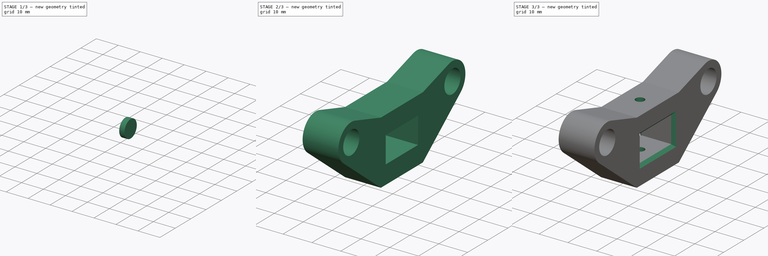
[diagram: build sequence overview — one tinted view per stage of 3, left to right]
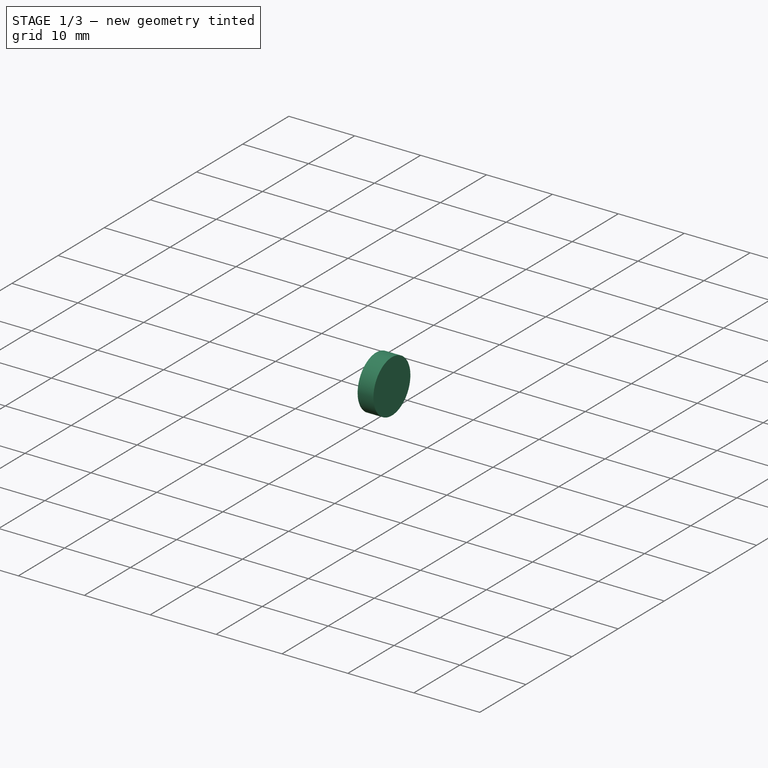
[diagram: stage 1 of 3 — iso view after this stage's code; geometry added in this stage tinted green]
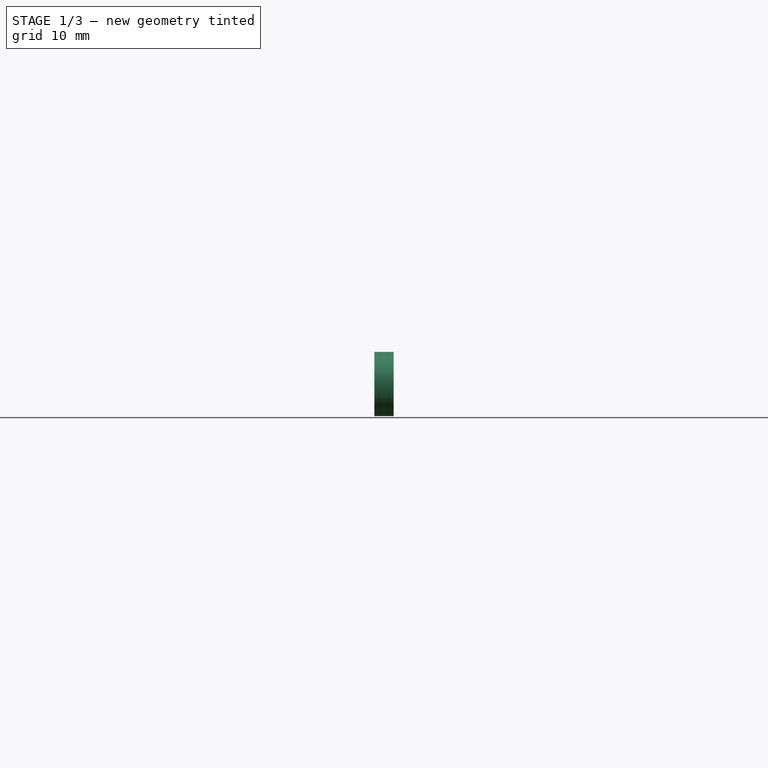
[diagram: stage 1 of 3 — front view after this stage's code; geometry added in this stage tinted green]
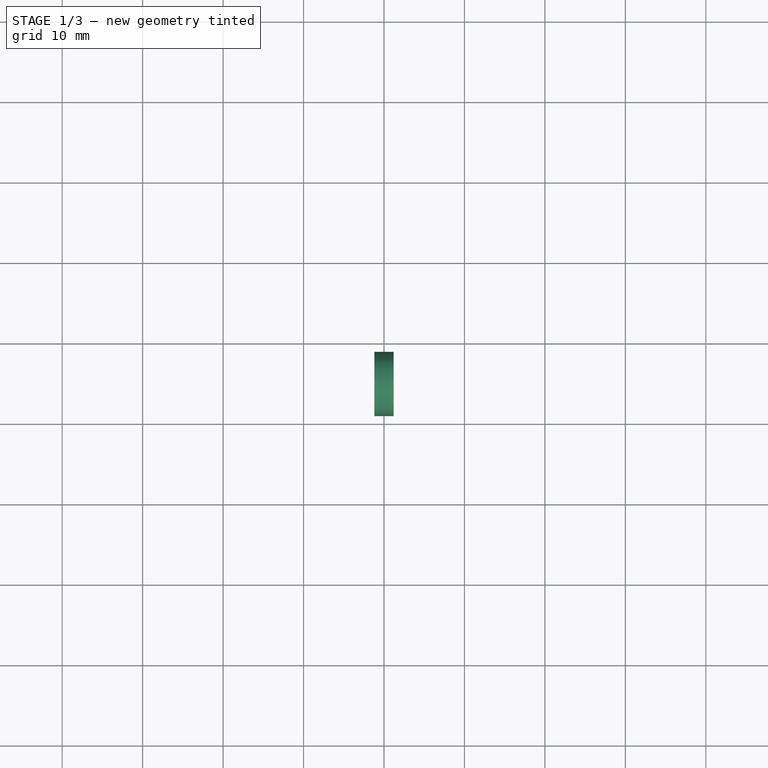
[diagram: stage 1 of 3 — top view after this stage's code; geometry added in this stage tinted green]
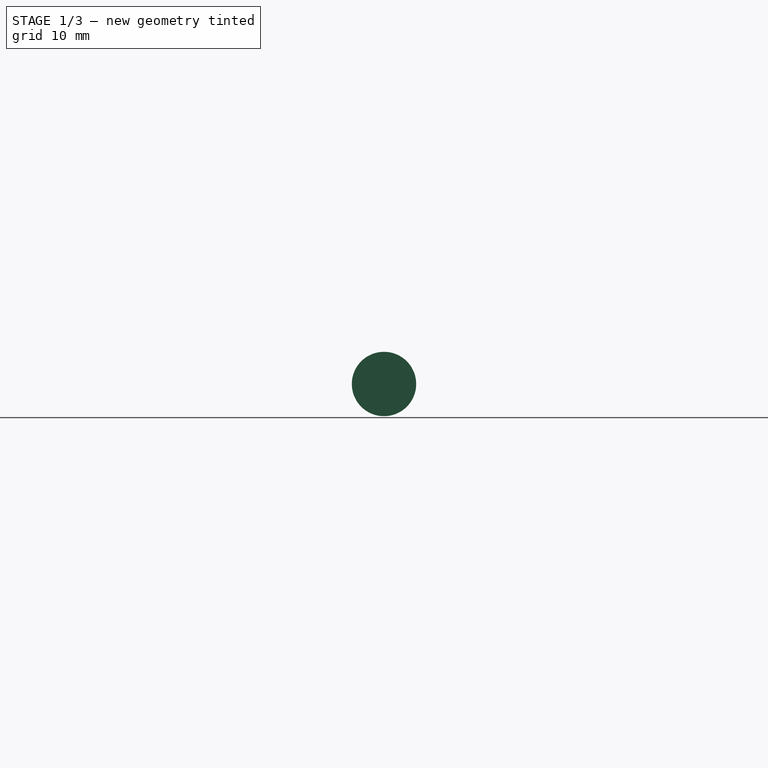
[diagram: stage 1 of 3 — right view after this stage's code; geometry added in this stage tinted green]
FCSTD DOCUMENT  (FreeCAD 0.19R24276 (Git))
Label: plotter-idler-holder
License: All rights reserved
LicenseURL: http://en.wikipedia.org/wiki/All_rights_reserved
objects: Sketcher::SketchObject×4, PartDesign::Pad×3, PartDesign::Body×3, Spreadsheet::Sheet×1, PartDesign::Chamfer×1, PartDesign::Pocket×1, App::Part×1
note: 17 computed .brp shape members not serialized (recipe doc carries the construction recipe); baked Part::Feature solids carry a one-line shape summary decoded from their .brp

FEATURE [PartDesign::Body] Body002  label="RodHolder"
  Group = -> [Sketch019,Pad006,Chamfer,Sketch,Pocket]
  Origin = -> Origin004
  Tip = -> Pocket
FEATURE [Sketcher::SketchObject] Sketch020
  FullyConstrained = true
  MapMode = 5
  Placement = pos=(0,0,0) rot=(0.57735,0.57735,0.57735;2.0944rad)
  Support = -> [YZ_Plane]
  expr: Constraints[1] = (Spreadsheet.belt_hole_height + Spreadsheet.rod_d) / 2
  expr: Constraints[2] = (Spreadsheet.core_length - Spreadsheet.lm8uu_d) / 2 - 2.4
  sketch-geometry (1):
    g0: Circle CenterX=-25.05 CenterY=8.8 CenterZ=0 NormalX=0 NormalY=0 NormalZ=1 AngleXU=0 Radius=4
  constraints (3):
    c: Diameter(g0) = 8
    c: DistanceY(g-1,g0) = 8.8
    c: DistanceX(g0,g-1) = 25.05
FEATURE [PartDesign::Pad] Pad
  Direction = (1,1,1)
  Length = 2.4
  Length2 = 100
  Midplane = true
  Placement = pos=(0,0,0) rot=(0.57735,0.57735,0.57735;2.0944rad)
  Profile = -> Sketch020
  Reversed = true
  Type = 0
FEATURE [PartDesign::Body] Body  label="RodCapLeft"
  Group = -> [Sketch020,Pad]
  Origin = -> Origin
  Placement = pos=(5,0,0) rot=(0,0,1;0rad)
  Tip = -> Pad
FEATURE [Sketcher::SketchObject] Sketch021
  FullyConstrained = true
  MapMode = 5
  Placement = pos=(0,0,0) rot=(0.57735,0.57735,0.57735;2.0944rad)
  Support = -> [YZ_Plane005]
  expr: Constraints[2] = (Spreadsheet.core_length - Spreadsheet.lm8uu_d) / 2 - 2.4
  expr: Constraints[1] = (Spreadsheet.belt_hole_height + Spreadsheet.rod_d) / 2
  sketch-geometry (1):
    g0: Circle CenterX=-25.05 CenterY=8.8 CenterZ=0 NormalX=0 NormalY=0 NormalZ=1 AngleXU=0 Radius=4
  constraints (3):
    c: Diameter(g0) = 8
    c: DistanceY(g-1,g0) = 8.8
    c: DistanceX(g0,g-1) = 25.05
FEATURE [PartDesign::Pad] Pad007
  Direction = (1,1,1)
  Length = 2.4
  Length2 = 100
  Midplane = true
  Placement = pos=(0,0,0) rot=(0.57735,0.57735,0.57735;2.0944rad)
  Profile = -> Sketch021
  Reversed = true
  Type = 0
FEATURE [PartDesign::Body] Body003  label="RodCapRight"
  Group = -> [Sketch021,Pad007]
  Origin = -> Origin005
  Placement = pos=(5,0,0) rot=(0,0,1;3.14159rad)
  Tip = -> Pad007
FEATURE [App::Part] Part001  label="IdlerHolder"
  Group = -> [Body002,Body,Body003]
  Origin = -> Origin002
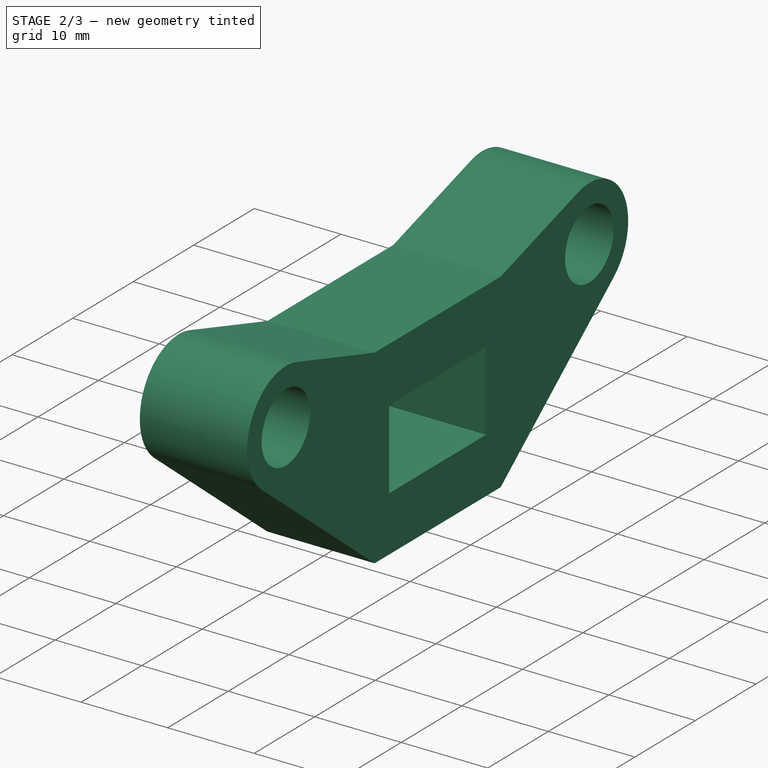
[diagram: stage 2 of 3 — iso view after this stage's code; geometry added in this stage tinted green]
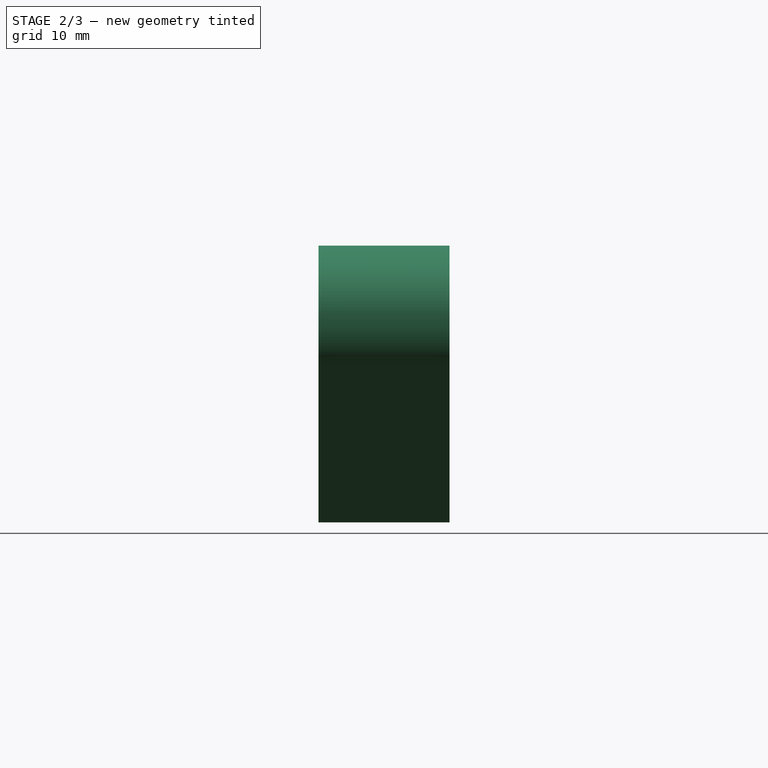
[diagram: stage 2 of 3 — front view after this stage's code; geometry added in this stage tinted green]
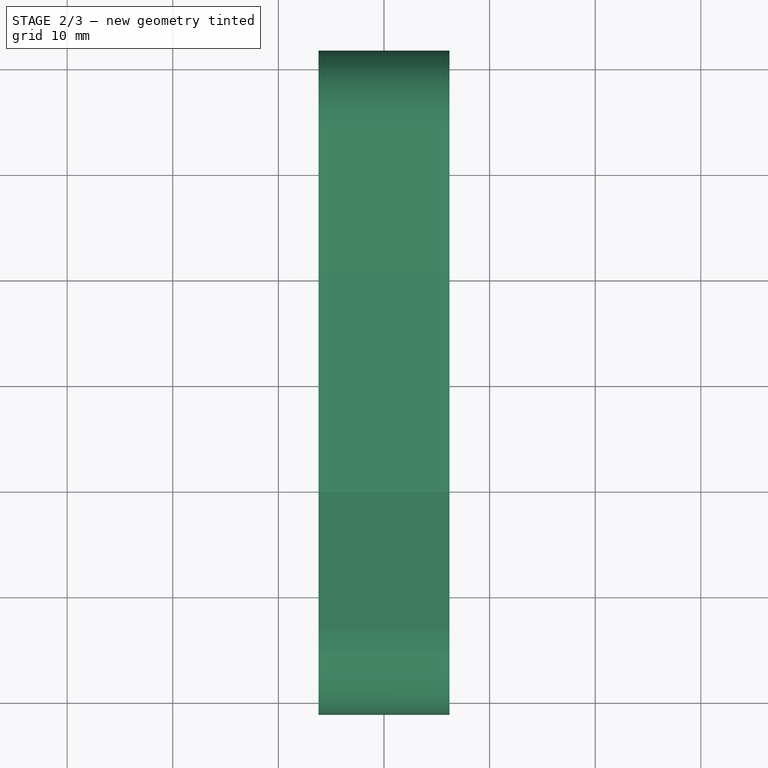
[diagram: stage 2 of 3 — top view after this stage's code; geometry added in this stage tinted green]
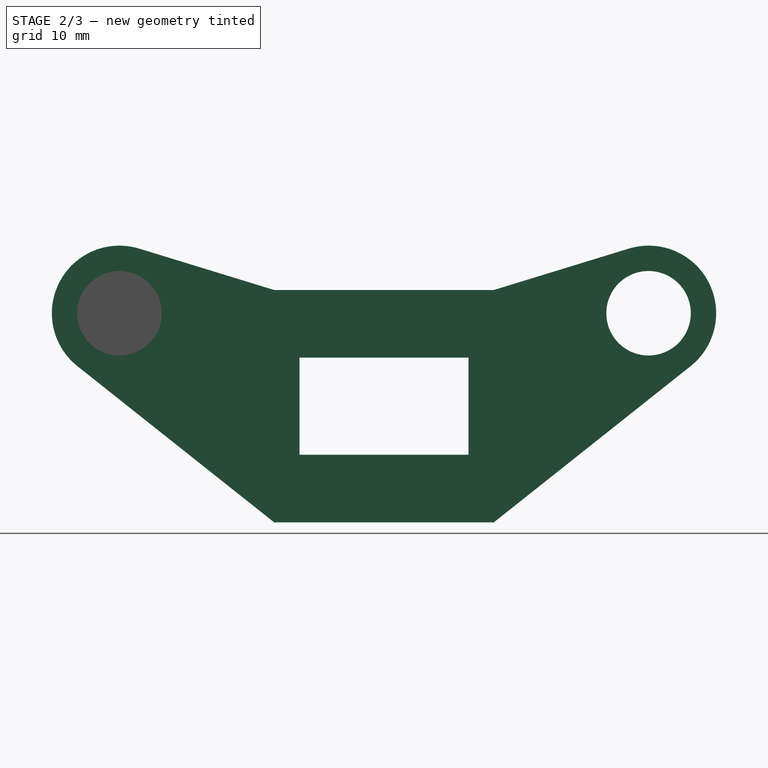
[diagram: stage 2 of 3 — right view after this stage's code; geometry added in this stage tinted green]
FEATURE [Spreadsheet::Sheet] Spreadsheet  label="Specs"
  cells = A5=Core length; B5(core_length)=70; A6=Core heigth; B6(core_height)=22; A7=Core inner length; B7(core_inner_length)=36; A9=Belt hole heigth; B9(belt_hole_height)=9.199999999999999; A10=Belt hole width; B10(belt_hole_width)=16; A12=LM8UU Diameter; B12(lm8uu_d)=15.1; A13=Rod Diameter; B13(rod_d)=8.4; A14=LM8UU Legth; B14(lm8uu_l)=24; A16=nema_l; B16(nema_l)=42; A17=nema_hole_d; B17(nema_hole_d)=3; A18=nema_hole_pos; B18(nema_hole_pos)==31 / 2
FEATURE [Sketcher::SketchObject] Sketch019
  FullyConstrained = true
  MapMode = 5
  Placement = pos=(0,0,0) rot=(0.57735,-0.57735,-0.57735;2.0944rad)
  expr: Constraints[32] = (Spreadsheet.core_height - Spreadsheet.belt_hole_height) / 2
  expr: Constraints[20] = (Spreadsheet.core_length - Spreadsheet.lm8uu_d) / 2 - 2.4
  expr: Constraints[16] = Spreadsheet.belt_hole_width + 2.4 * 2
  expr: Constraints[21] = (Spreadsheet.belt_hole_height + Spreadsheet.rod_d) / 2
  expr: Constraints[13] = Spreadsheet.belt_hole_width
  expr: Constraints[17] = (Spreadsheet.core_height - Spreadsheet.belt_hole_height) / 2
  expr: Constraints[14] = Spreadsheet.belt_hole_height
  sketch-geometry (15):
    g0: ArcOfCircle CenterX=-25.05 CenterY=8.8 CenterZ=0 NormalX=0 NormalY=0 NormalZ=1 AngleXU=0 Radius=6.4 StartAngle=1.27313 EndAngle=4.04145
    g1: ArcOfCircle CenterX=25.05 CenterY=8.8 CenterZ=0 NormalX=0 NormalY=0 NormalZ=1 AngleXU=0 Radius=6.4 StartAngle=5.38332 EndAngle=8.15165
    g2: LineSegment StartX=-29.029 StartY=3.78726 StartZ=0 EndX=-10.4 EndY=-11 EndZ=0
    g3: LineSegment StartX=-10.4 StartY=-11 StartZ=0 EndX=10.4 EndY=-11 EndZ=0
    g4: LineSegment StartX=10.4 StartY=-11 StartZ=0 EndX=29.029 EndY=3.78726 EndZ=0
    g5: LineSegment StartX=-8 StartY=4.6 StartZ=0 EndX=8 EndY=4.6 EndZ=0
    g6: LineSegment StartX=8 StartY=4.6 StartZ=0 EndX=8 EndY=-4.6 EndZ=0
    g7: LineSegment StartX=8 StartY=-4.6 StartZ=0 EndX=-8 EndY=-4.6 EndZ=0
    g8: LineSegment StartX=-8 StartY=-4.6 StartZ=0 EndX=-8 EndY=4.6 EndZ=0
    g9: Circle CenterX=25.05 CenterY=8.8 CenterZ=0 NormalX=0 NormalY=0 NormalZ=1 AngleXU=0 Radius=4
    g10: Circle CenterX=-25.05 CenterY=8.8 CenterZ=0 NormalX=0 NormalY=0 NormalZ=1 AngleXU=0 Radius=4
    g11: LineSegment StartX=-23.1729 StartY=14.9185 StartZ=0 EndX=-10.4 EndY=11 EndZ=0
    g12: LineSegment StartX=-10.4 StartY=11 StartZ=0 EndX=10.4 EndY=11 EndZ=0
    g13: LineSegment StartX=10.4 StartY=11 StartZ=0 EndX=23.1729 EndY=14.9185 EndZ=0
    g14: LineSegment StartX=25.05 StartY=12.8 StartZ=0 EndX=25.05 EndY=15.2 EndZ=0
  constraints (39):
    c: Symmetric(g0,g1,g-2)
    c: Symmetric(g2,g4,g-2)
    c: Horizontal(g0,g1)
    c: Coincident(g2,g3)
    c: Coincident(g3,g4)
    c: Coincident(g5,g6)
    c: Coincident(g6,g7)
    c: Coincident(g7,g8)
    c: Coincident(g8,g5)
    c: Horizontal(g5)
    c: Horizontal(g7)
    c: Vertical(g6)
    c: Vertical(g8)
    c: DistanceX(g5,g5) = 16
    c: DistanceY(g6,g6) = 9.2
    c: Symmetric(g7,g5,g-1)
    c: DistanceX(g3,g3) = 20.8
    c: DistanceY(g3,g6) = 6.4
    c: Coincident(g9,g1)
    c: Diameter(g9) = 8
    c: DistanceX(g-1,g1) = 25.05
    c: DistanceY(g-1,g1) = 8.8
    c: Coincident(g10,g0)
    c: Equal(g10,g9)
    c: Symmetric(g0,g1,g-2)
    c: Coincident(g2,g0)
    c: Tangent(g4,g1) = -1.5708
    c: Coincident(g12,g11)
    c: Horizontal(g12)
    c: Coincident(g13,g12)
    c: Tangent(g13,g1) = 1.5708
    c: Tangent(g11,g0) = 1.5708
    c: DistanceY(g5,g12) = 6.4
    c: Equal(g3,g12)
    c: PointOnObject(g14,g9)
    c: PointOnObject(g14,g1)
    c: Distance(g14) = 2.4
    c: Perpendicular(g9,g14)
    c: Vertical(g14)
FEATURE [PartDesign::Pad] Pad006
  Direction = (1,1,1)
  Length = 12.4
  Length2 = 100
  Midplane = true
  Placement = pos=(0,0,0) rot=(0.57735,-0.57735,-0.57735;2.0944rad)
  Profile = -> Sketch019
  Type = 0
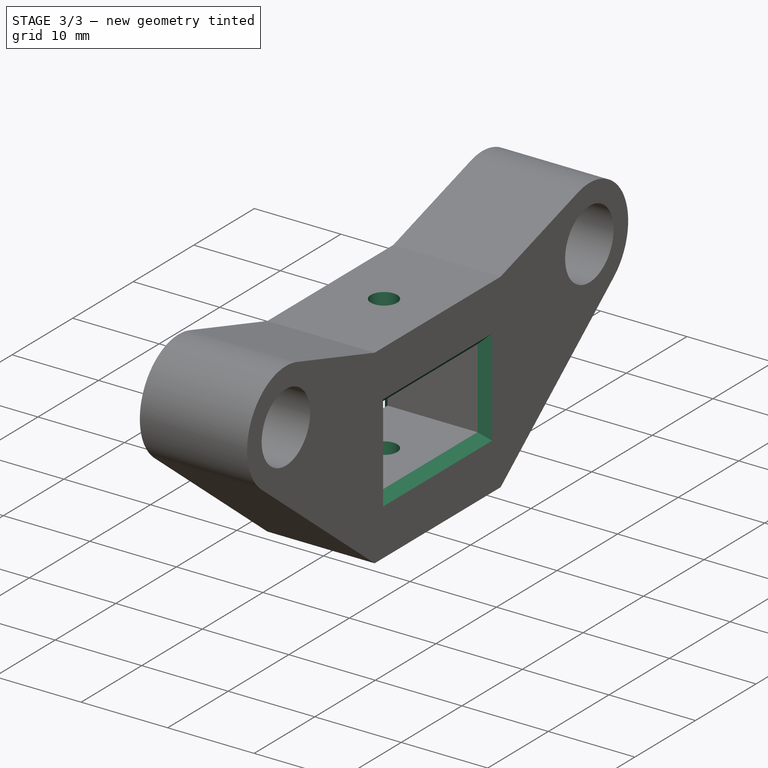
[diagram: stage 3 of 3 — iso view after this stage's code; geometry added in this stage tinted green]
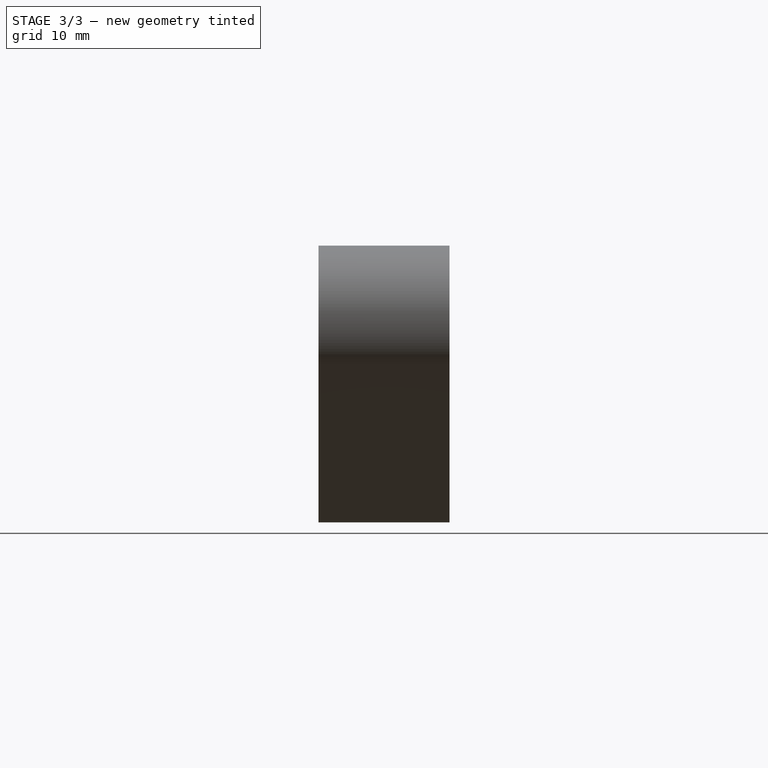
[diagram: stage 3 of 3 — front view after this stage's code; geometry added in this stage tinted green]
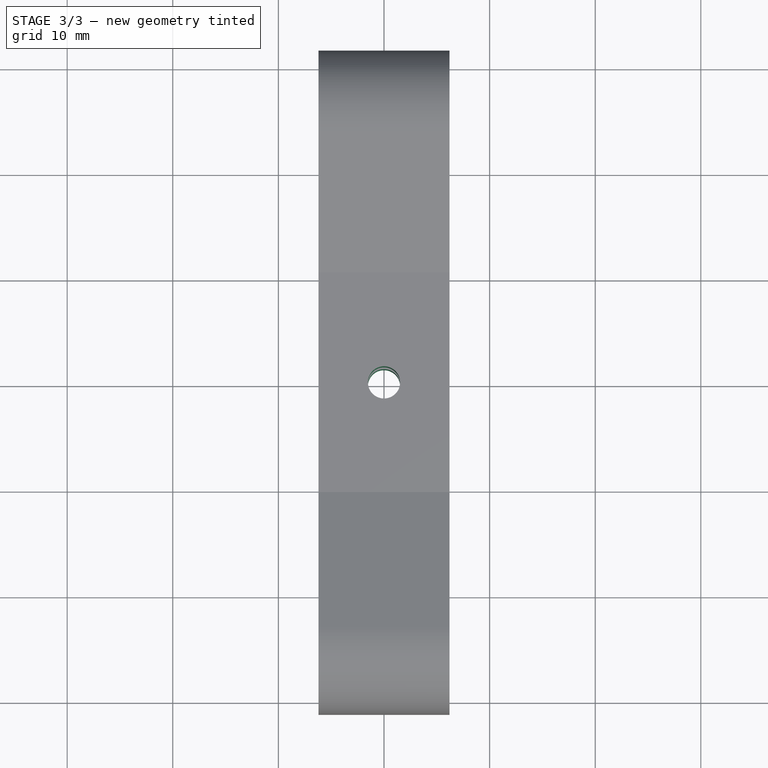
[diagram: stage 3 of 3 — top view after this stage's code; geometry added in this stage tinted green]
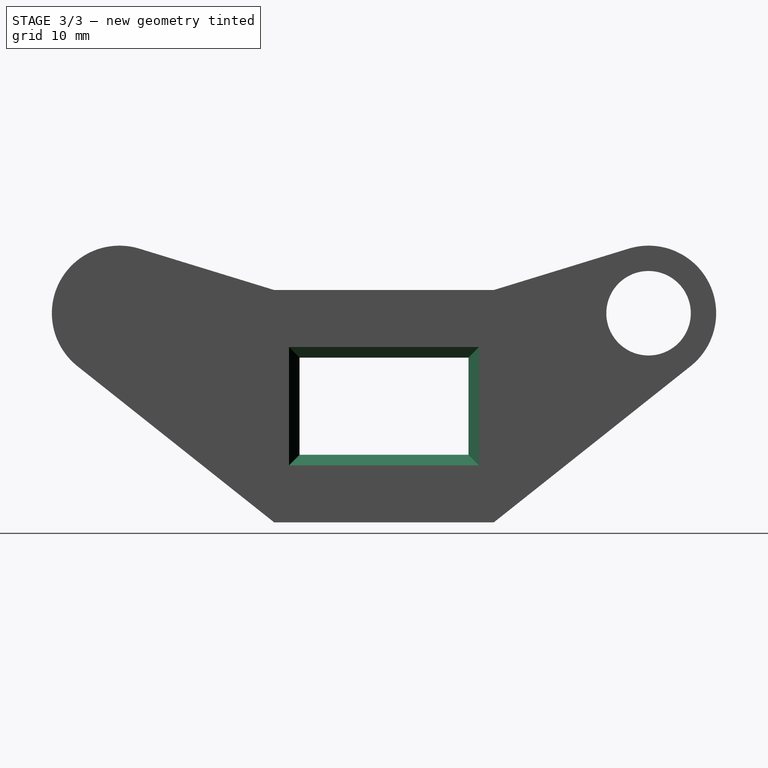
[diagram: stage 3 of 3 — right view after this stage's code; geometry added in this stage tinted green]
FEATURE [PartDesign::Chamfer] Chamfer
  Angle = 45
  Base = -> Pad006 [Edge28,Edge36,Edge31,Edge34,Edge27,Edge30,Edge33,Edge35]
  BaseFeature = -> Pad006
  ChamferType = 0
  FlipDirection = false
  Placement = pos=(0,0,0) rot=(0.57735,-0.57735,-0.57735;2.0944rad)
  Size = 1
  Size2 = 1
  SupportTransform = false
FEATURE [Sketcher::SketchObject] Sketch
  FullyConstrained = true
  MapMode = 5
  Support = -> [XY_Plane004]
  sketch-geometry (1):
    g0: Circle CenterX=0 CenterY=0 CenterZ=0 NormalX=0 NormalY=0 NormalZ=1 AngleXU=0 Radius=1.525
  constraints (2):
    c: Coincident(g0,g-1)
    c: Diameter(g0) = 3.05
FEATURE [PartDesign::Pocket] Pocket
  BaseFeature = -> Chamfer
  Length = 5
  Length2 = 100
  Midplane = true
  Placement = pos=(0,0,0) rot=(0.57735,-0.57735,-0.57735;2.0944rad)
  Profile = -> Sketch
  Type = 1
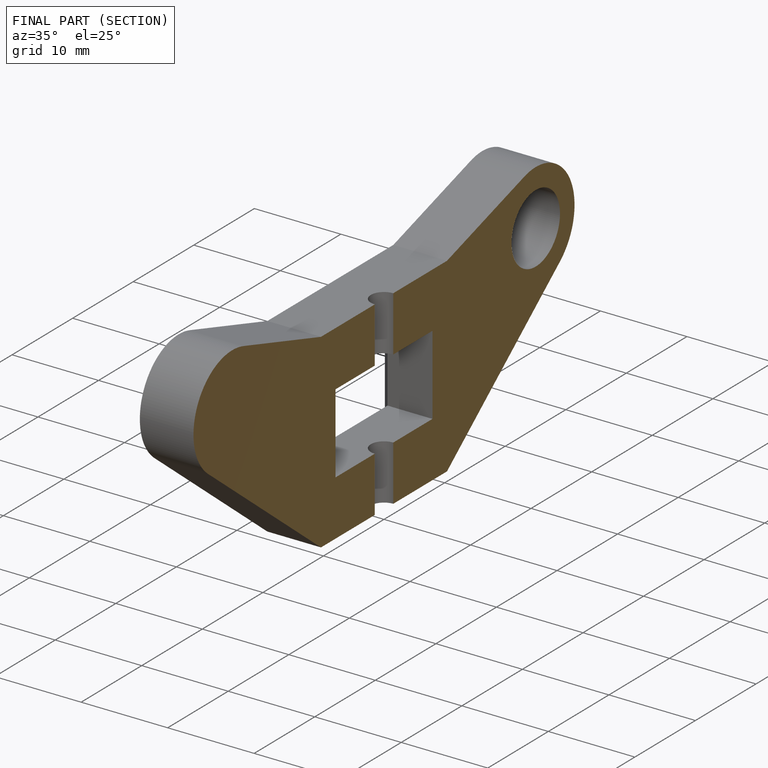
[diagram: finished part — half-section view (interior)]
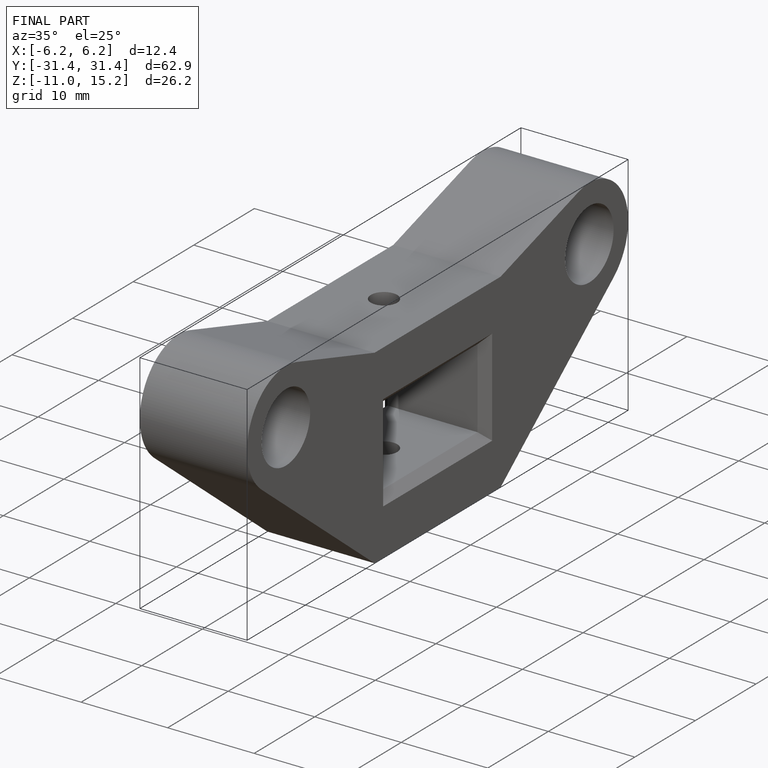
[diagram: finished part — iso view with bounding-box wireframe]
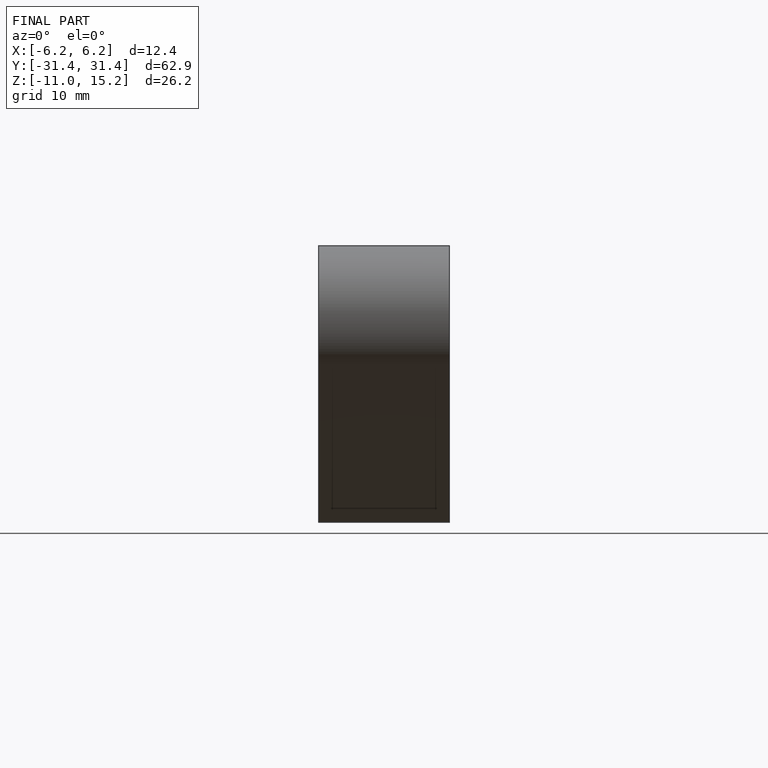
[diagram: finished part — front view with bounding-box wireframe]
